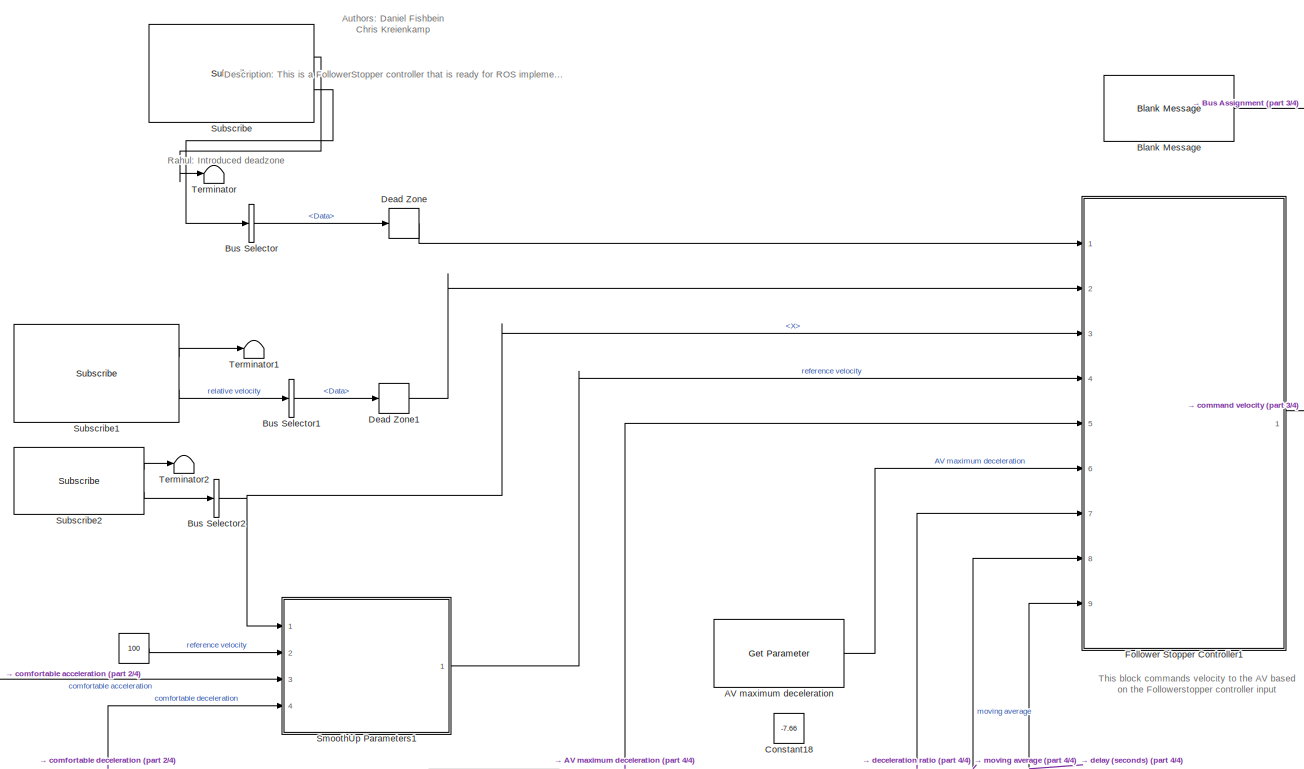
[diagram: root canvas - part 1/4, central region]
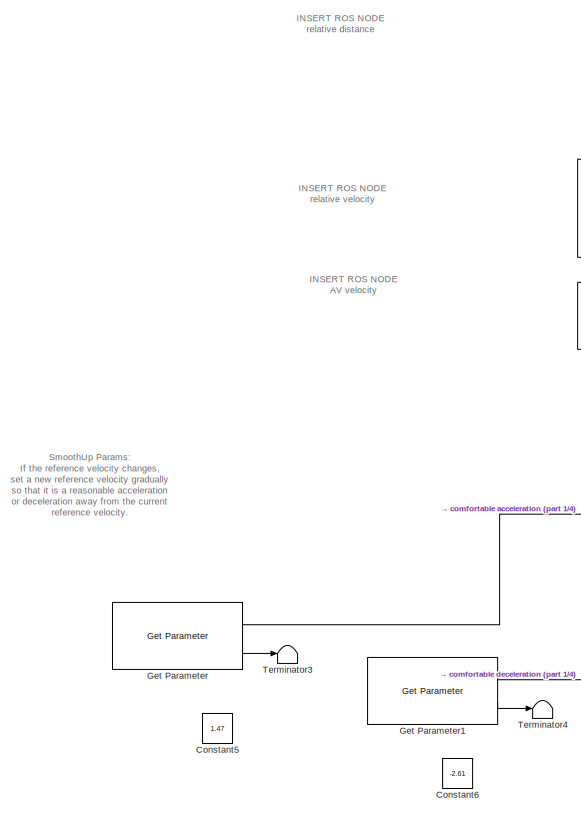
[diagram: root canvas - part 2/4, middle left region]
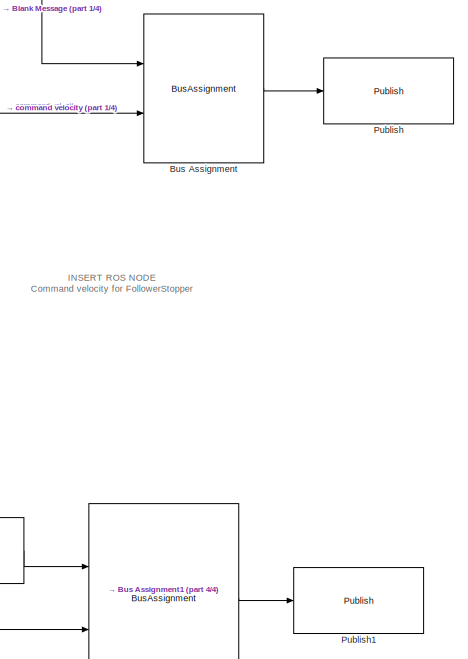
[diagram: root canvas - part 3/4, middle right region]
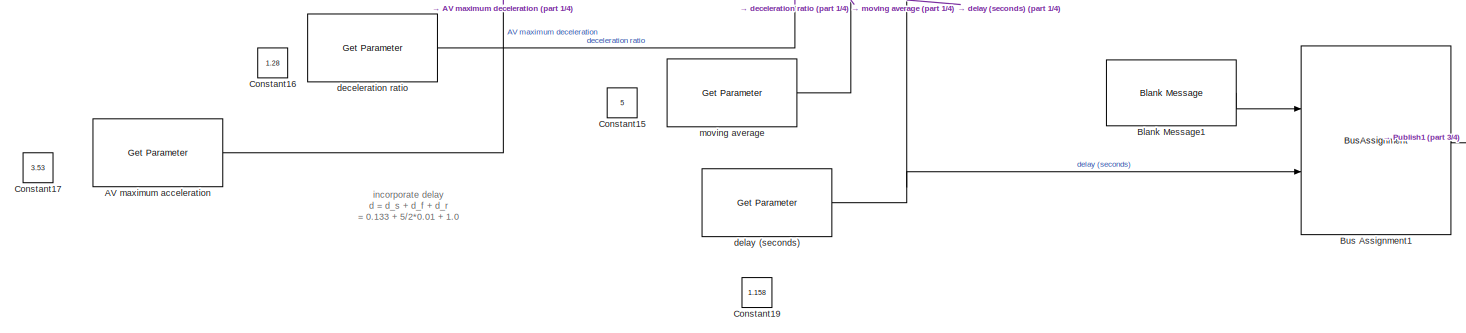
[diagram: root canvas - part 4/4, bottom center region]
MODEL slx_8d01e1a0d871
KIND model
CONFIG AbsTol = auto
CONFIG EnableMultiTasking = off
CONFIG FixedStep = 0.01
CONFIG MaxStep = auto
CONFIG MinStep = auto
CONFIG RelTol = 1e-3
CONFIG SampleTimeConstraint = Unconstrained
CONFIG Solver = FixedStepAuto
CONFIG SolverName = FixedStepAuto
CONFIG StartTime = 0.0
CONFIG StopTime = inf
BLOCK [Constant]   
  Value = 100
BLOCK [Reference] AV maximum acceleration  REF=robotlib/Get Parameter
  Ports = [0, 1]
  SourceBlock = robotlib/Get Parameter
  SourceProductBaseCode = RO
  SourceProductName = Robotics System Toolbox
  SourceType = ROS Get Parameter
BLOCK [Reference] AV maximum deceleration  REF=robotlib/Get Parameter
  Ports = [0, 1]
  SourceBlock = robotlib/Get Parameter
  SourceProductBaseCode = RO
  SourceProductName = Robotics System Toolbox
  SourceType = ROS Get Parameter
BLOCK [Reference] Blank Message  REF=robotlib/Blank Message
  Ports = [0, 1]
  SourceBlock = robotlib/Blank Message
  SourceProductBaseCode = RO
  SourceProductName = Robotics System Toolbox
  SourceType = ROS Blank Message
BLOCK [Reference] Blank Message1  REF=robotlib/Blank Message
  Ports = [0, 1]
  SourceBlock = robotlib/Blank Message
  SourceProductBaseCode = RO
  SourceProductName = Robotics System Toolbox
  SourceType = ROS Blank Message
BLOCK [BusAssignment] Bus Assignment
  AssignedSignals = Linear.X
  Ports = [2, 1]
BLOCK [BusAssignment] Bus Assignment1
  AssignedSignals = Data
  Ports = [2, 1]
BLOCK [BusSelector] Bus Selector
  OutputAsBus = off
  OutputSignals = Data
  Ports = [1, 1]
BLOCK [BusSelector] Bus Selector1
  OutputAsBus = off
  OutputSignals = Data
  Ports = [1, 1]
BLOCK [BusSelector] Bus Selector2
  OutputAsBus = off
  OutputSignals = Linear.X
  Ports = [1, 1]
BLOCK [Constant] Constant15
  Commented = on
  Value = 5
BLOCK [Constant] Constant16
  Commented = on
  Value = 1.28
BLOCK [Constant] Constant17
  Commented = on
  Value = 3.53
BLOCK [Constant] Constant18
  Commented = on
  Value = -7.66
BLOCK [Constant] Constant19
  Commented = on
  Value = 1.158
BLOCK [Constant] Constant5
  Commented = on
  Value = 1.47
BLOCK [Constant] Constant6
  Commented = on
  Value = -2.61
BLOCK [DeadZone] Dead Zone
  LowerValue = -0.1
  UpperValue = 0.1
BLOCK [DeadZone] Dead Zone1
  LowerValue = -0.1
  UpperValue = 0.1
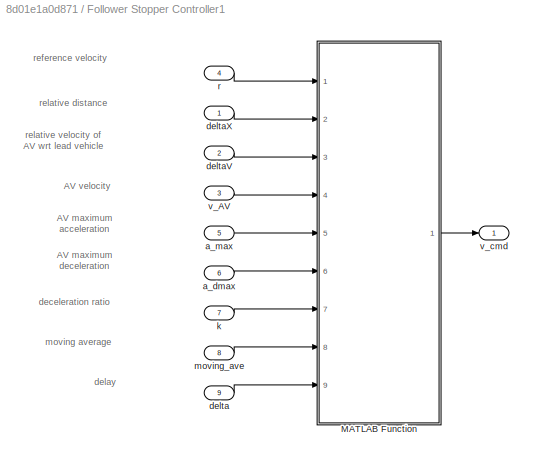
BLOCK [SubSystem] Follower Stopper Controller1
  Ports = [9, 1]
  RequestExecContextInheritance = off
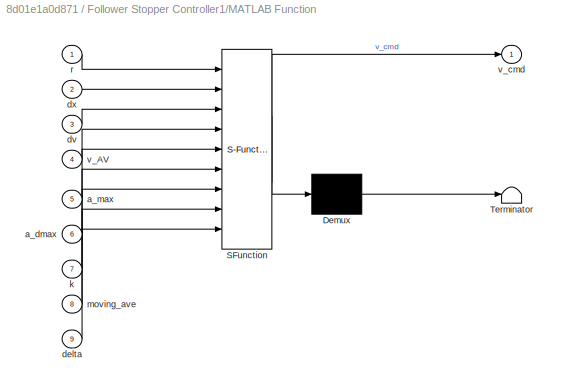
BLOCK [SubSystem] Follower Stopper Controller1/MATLAB Function
  ErrorFcn = Stateflow.Translate.translate
  PermitHierarchicalResolution = ExplicitOnly
  Ports = [9, 1]
  RequestExecContextInheritance = off
  SFBlockType = MATLAB Function
  TreatAsAtomicUnit = on
BLOCK [Demux] Follower Stopper Controller1/MATLAB Function/ Demux 
  Outputs = 1
  Ports = [1, 1]
BLOCK [S-Function] Follower Stopper Controller1/MATLAB Function/ SFunction 
  EnableBusSupport = on
  FunctionName = sf_sfun
  PortCounts = [9 2]
  Ports = [9, 2]
  SFcnIsStateOwnerBlock = off
  SFunctionDeploymentMode = off
  Tag = Stateflow S-Function ROSReady_FollowerStopper 2
BLOCK [Terminator] Follower Stopper Controller1/MATLAB Function/ Terminator 
BLOCK [Inport] Follower Stopper Controller1/MATLAB Function/a_dmax
  IconDisplay = Port number
  Port = 6
BLOCK [Inport] Follower Stopper Controller1/MATLAB Function/a_max
  IconDisplay = Port number
  Port = 5
BLOCK [Inport] Follower Stopper Controller1/MATLAB Function/delta
  IconDisplay = Port number
  Port = 9
BLOCK [Inport] Follower Stopper Controller1/MATLAB Function/dv
  IconDisplay = Port number
  Port = 3
BLOCK [Inport] Follower Stopper Controller1/MATLAB Function/dx
  IconDisplay = Port number
  Port = 2
BLOCK [Inport] Follower Stopper Controller1/MATLAB Function/k
  IconDisplay = Port number
  Port = 7
BLOCK [Inport] Follower Stopper Controller1/MATLAB Function/moving_ave
  IconDisplay = Port number
  Port = 8
BLOCK [Inport] Follower Stopper Controller1/MATLAB Function/r
  IconDisplay = Port number
BLOCK [Inport] Follower Stopper Controller1/MATLAB Function/v_AV
  IconDisplay = Port number
  Port = 4
BLOCK [Outport] Follower Stopper Controller1/MATLAB Function/v_cmd
  IconDisplay = Port number
BLOCK [Inport] Follower Stopper Controller1/a_dmax
  IconDisplay = Port number
  Port = 6
BLOCK [Inport] Follower Stopper Controller1/a_max
  IconDisplay = Port number
  Port = 5
BLOCK [Inport] Follower Stopper Controller1/delta
  IconDisplay = Port number
  Port = 9
BLOCK [Inport] Follower Stopper Controller1/deltaV
  IconDisplay = Port number
  Port = 2
BLOCK [Inport] Follower Stopper Controller1/deltaX
  IconDisplay = Port number
BLOCK [Inport] Follower Stopper Controller1/k
  IconDisplay = Port number
  Port = 7
BLOCK [Inport] Follower Stopper Controller1/moving_ave
  IconDisplay = Port number
  Port = 8
BLOCK [Inport] Follower Stopper Controller1/r
  IconDisplay = Port number
  Port = 4
BLOCK [Inport] Follower Stopper Controller1/v_AV
  IconDisplay = Port number
  Port = 3
BLOCK [Outport] Follower Stopper Controller1/v_cmd
  IconDisplay = Port number
BLOCK [Reference] Get Parameter  REF=robotlib/Get Parameter
  Ports = [0, 2]
  SourceBlock = robotlib/Get Parameter
  SourceProductBaseCode = RO
  SourceProductName = Robotics System Toolbox
  SourceType = ROS Get Parameter
BLOCK [Reference] Get Parameter1  REF=robotlib/Get Parameter
  Ports = [0, 2]
  SourceBlock = robotlib/Get Parameter
  SourceProductBaseCode = RO
  SourceProductName = Robotics System Toolbox
  SourceType = ROS Get Parameter
BLOCK [Reference] Publish  REF=robotlib/Publish
  Ports = [1]
  SourceBlock = robotlib/Publish
  SourceProductBaseCode = RO
  SourceProductName = Robotics System Toolbox
  SourceType = ROS Publish
BLOCK [Reference] Publish1  REF=robotlib/Publish
  Ports = [1]
  SourceBlock = robotlib/Publish
  SourceProductBaseCode = RO
  SourceProductName = Robotics System Toolbox
  SourceType = ROS Publish
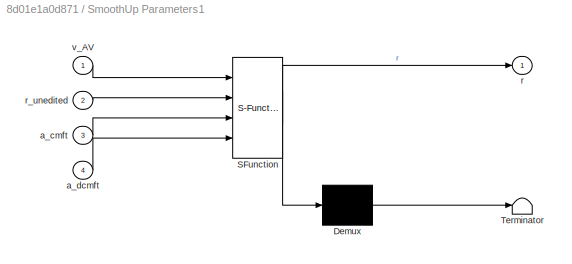
BLOCK [SubSystem] SmoothUp Parameters1
  ErrorFcn = Stateflow.Translate.translate
  PermitHierarchicalResolution = ExplicitOnly
  Ports = [4, 1]
  RequestExecContextInheritance = off
  SFBlockType = MATLAB Function
  TreatAsAtomicUnit = on
BLOCK [Demux] SmoothUp Parameters1/ Demux 
  Outputs = 1
  Ports = [1, 1]
BLOCK [S-Function] SmoothUp Parameters1/ SFunction 
  EnableBusSupport = on
  FunctionName = sf_sfun
  PortCounts = [4 2]
  Ports = [4, 2]
  SFcnIsStateOwnerBlock = off
  SFunctionDeploymentMode = off
  Tag = Stateflow S-Function ROSReady_FollowerStopper 1
BLOCK [Terminator] SmoothUp Parameters1/ Terminator 
BLOCK [Inport] SmoothUp Parameters1/a_cmft
  IconDisplay = Port number
  Port = 3
BLOCK [Inport] SmoothUp Parameters1/a_dcmft
  IconDisplay = Port number
  Port = 4
BLOCK [Outport] SmoothUp Parameters1/r
  IconDisplay = Port number
BLOCK [Inport] SmoothUp Parameters1/r_unedited
  IconDisplay = Port number
  Port = 2
BLOCK [Inport] SmoothUp Parameters1/v_AV
  IconDisplay = Port number
BLOCK [Reference] Subscribe  REF=robotlib/Subscribe
  Ports = [0, 2]
  SourceBlock = robotlib/Subscribe
  SourceProductBaseCode = RO
  SourceProductName = Robotics System Toolbox
  SourceType = ROS Subscribe
BLOCK [Reference] Subscribe1  REF=robotlib/Subscribe
  Ports = [0, 2]
  SourceBlock = robotlib/Subscribe
  SourceProductBaseCode = RO
  SourceProductName = Robotics System Toolbox
  SourceType = ROS Subscribe
BLOCK [Reference] Subscribe2  REF=robotlib/Subscribe
  Ports = [0, 2]
  SourceBlock = robotlib/Subscribe
  SourceProductBaseCode = RO
  SourceProductName = Robotics System Toolbox
  SourceType = ROS Subscribe
BLOCK [Terminator] Terminator
BLOCK [Terminator] Terminator1
BLOCK [Terminator] Terminator2
BLOCK [Terminator] Terminator3
BLOCK [Terminator] Terminator4
BLOCK [Reference] deceleration ratio  REF=robotlib/Get Parameter
  Ports = [0, 1]
  SourceBlock = robotlib/Get Parameter
  SourceProductBaseCode = RO
  SourceProductName = Robotics System Toolbox
  SourceType = ROS Get Parameter
BLOCK [Reference] delay (seconds)  REF=robotlib/Get Parameter
  Ports = [0, 1]
  SourceBlock = robotlib/Get Parameter
  SourceProductBaseCode = RO
  SourceProductName = Robotics System Toolbox
  SourceType = ROS Get Parameter
BLOCK [Reference] moving average  REF=robotlib/Get Parameter
  Ports = [0, 1]
  SourceBlock = robotlib/Get Parameter
  SourceProductBaseCode = RO
  SourceProductName = Robotics System Toolbox
  SourceType = ROS Get Parameter
ANNOTATION (root): Rahul: Introduced deadzone
ANNOTATION (root): Description : This is a FollowerStopper controller that is ready for ROS implementation
ANNOTATION (root): Authors: Daniel Fishbein Chris Kreienkamp
ANNOTATION (root): INSERT ROS NODE AV velocity
ANNOTATION (root): INSERT ROS NODE Command velocity for FollowerStopper
ANNOTATION (root): INSERT ROS NODE relative distance
ANNOTATION (root): INSERT ROS NODE relative velocity
ANNOTATION (root): SmoothUp Params: If the reference velocity changes, set a new reference velocity gradually so that it is a reasonable acceleration or deceleration away from the current reference velocity.
ANNOTATION (root): incorporate delay d = d_s + d_f + d_r = 0.133 + 5/2*0.01 + 1.0
ANNOTATION (root): This block commands velocity to the AV based on the Followerstopper controller input
ANNOTATION Follower Stopper Controller1: AV maximum acceleration
ANNOTATION Follower Stopper Controller1: AV maximum deceleration
ANNOTATION Follower Stopper Controller1: AV velocity
ANNOTATION Follower Stopper Controller1: deceleration ratio
ANNOTATION Follower Stopper Controller1: delay
ANNOTATION Follower Stopper Controller1: moving average
ANNOTATION Follower Stopper Controller1: reference velocity
ANNOTATION Follower Stopper Controller1: relative distance
ANNOTATION Follower Stopper Controller1: relative velocity of AV wrt lead vehicle
LINE   :1 -> SmoothUp Parameters1:2
LINE AV maximum acceleration:1 -> Follower Stopper Controller1:5
LINE AV maximum deceleration:1 -> Follower Stopper Controller1:6
LINE Blank Message1:1 -> Bus Assignment1:1
LINE Blank Message:1 -> Bus Assignment:1
LINE Bus Assignment1:1 -> Publish1:1
LINE Bus Assignment:1 -> Publish:1
LINE Bus Selector1:1 -> Dead Zone1:1
NET Bus Selector2:1 -> Follower Stopper Controller1:3, SmoothUp Parameters1:1
LINE Bus Selector:1 -> Dead Zone:1
LINE Dead Zone1:1 -> Follower Stopper Controller1:2
LINE Dead Zone:1 -> Follower Stopper Controller1:1
LINE Follower Stopper Controller1/MATLAB Function:1 -> Follower Stopper Controller1/v_cmd:1
LINE Follower Stopper Controller1/a_dmax:1 -> Follower Stopper Controller1/MATLAB Function:6
LINE Follower Stopper Controller1/a_max:1 -> Follower Stopper Controller1/MATLAB Function:5
LINE Follower Stopper Controller1/delta:1 -> Follower Stopper Controller1/MATLAB Function:9
LINE Follower Stopper Controller1/deltaV:1 -> Follower Stopper Controller1/MATLAB Function:3
LINE Follower Stopper Controller1/deltaX:1 -> Follower Stopper Controller1/MATLAB Function:2
LINE Follower Stopper Controller1/k:1 -> Follower Stopper Controller1/MATLAB Function:7
LINE Follower Stopper Controller1/moving_ave:1 -> Follower Stopper Controller1/MATLAB Function:8
LINE Follower Stopper Controller1/r:1 -> Follower Stopper Controller1/MATLAB Function:1
LINE Follower Stopper Controller1/v_AV:1 -> Follower Stopper Controller1/MATLAB Function:4
LINE Follower Stopper Controller1:1 -> Bus Assignment:2
LINE Get Parameter1:1 -> SmoothUp Parameters1:4
LINE Get Parameter1:2 -> Terminator4:1
LINE Get Parameter:1 -> SmoothUp Parameters1:3
LINE Get Parameter:2 -> Terminator3:1
LINE SmoothUp Parameters1:1 -> Follower Stopper Controller1:4
LINE Subscribe1:1 -> Terminator1:1
LINE Subscribe1:2 -> Bus Selector1:1
LINE Subscribe2:1 -> Terminator2:1
LINE Subscribe2:2 -> Bus Selector2:1
LINE Subscribe:1 -> Terminator:1
LINE Subscribe:2 -> Bus Selector:1
LINE deceleration ratio:1 -> Follower Stopper Controller1:7
NET delay (seconds):1 -> Bus Assignment1:2, Follower Stopper Controller1:9
LINE moving average:1 -> Follower Stopper Controller1:8
note: NET lines group one-source signal fan-out (src -> all destinations, sorted); 1:1 wires keep LINE
CHART SmoothUp Parameters1 states=1 transitions=1
  STATE_LABEL 'eML_blk_kernel()'
  STATE_LABEL 'SCRIPT:\nfunction r = fcn(v_AV,r_unedited,a_cmft,a_dcmft)\n% #codegen\npersistent y\n\nif isempty(y)\n    y=v_AV;\nend\n\ndt=0.01;\nif( y > r_unedited + a_cmft*dt)\n    y = max(r_unedited,y - abs(a_dcmft)*dt);\nelseif( y < r_unedited - abs(a_dcmft)*dt)\n    y = min(r_unedited,y + a_cmft*dt);\nelse\n    y = r_unedited;\nend\n\nr = y;'
CHART Follower Stopper Controller1/MATLAB Function states=1 transitions=1
  STATE_LABEL 'eML_blk_kernel()'
  STATE_LABEL 'SCRIPT:\nfunction v_cmd = fcn(r,dx,dv,v_AV,...\n    a_max, a_dmax, k, moving_ave, delta)\n\n%#codegen\n% Safety controller, based on quadratic bands.\n% Input: r = desired velocity (from other models)\n%          dx = estimate of gap to vehicle ahead\n%          dv = estimate of time derivative of dx (= velocity difference)\n%        v_AV = velocity of AV\n%      a_cmft = comfortable acceleration\n%      a_d...<+1412ch>'
